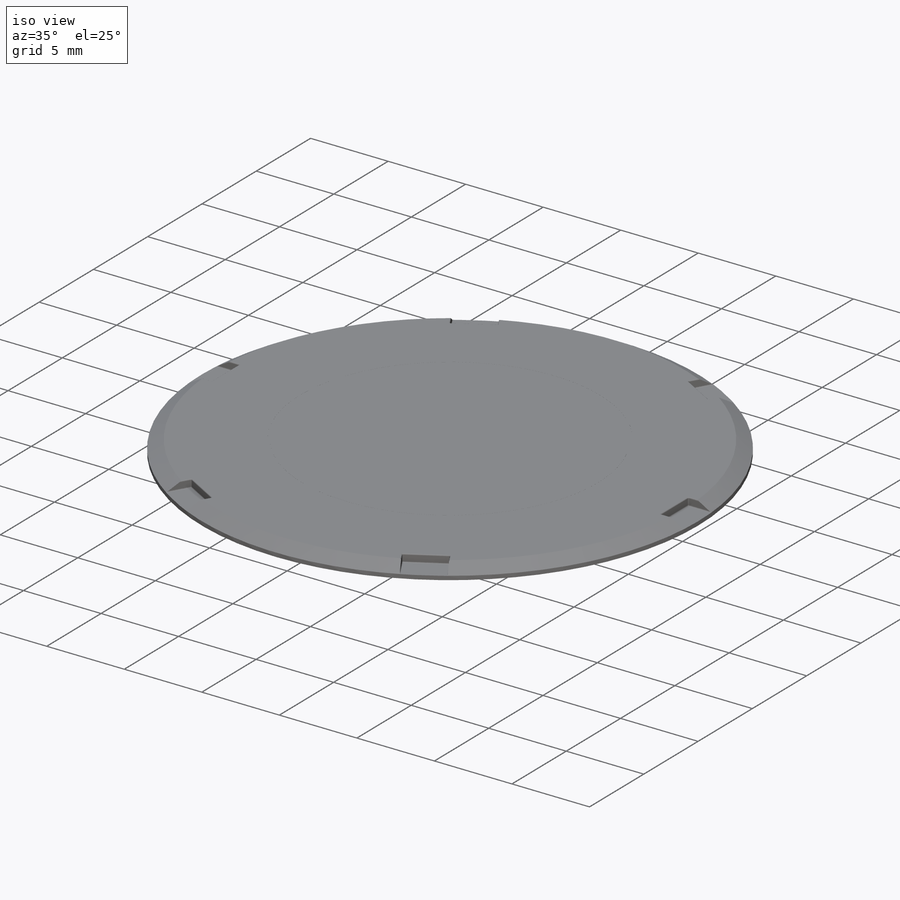
[diagram: iso view]
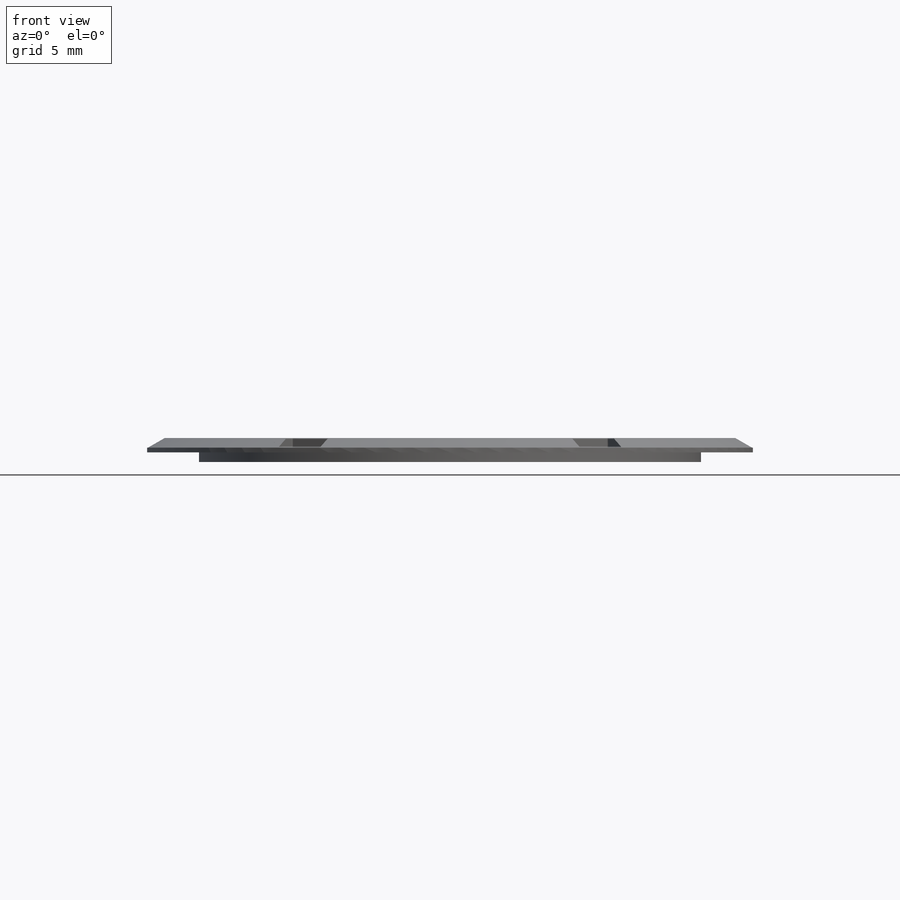
[diagram: front view]
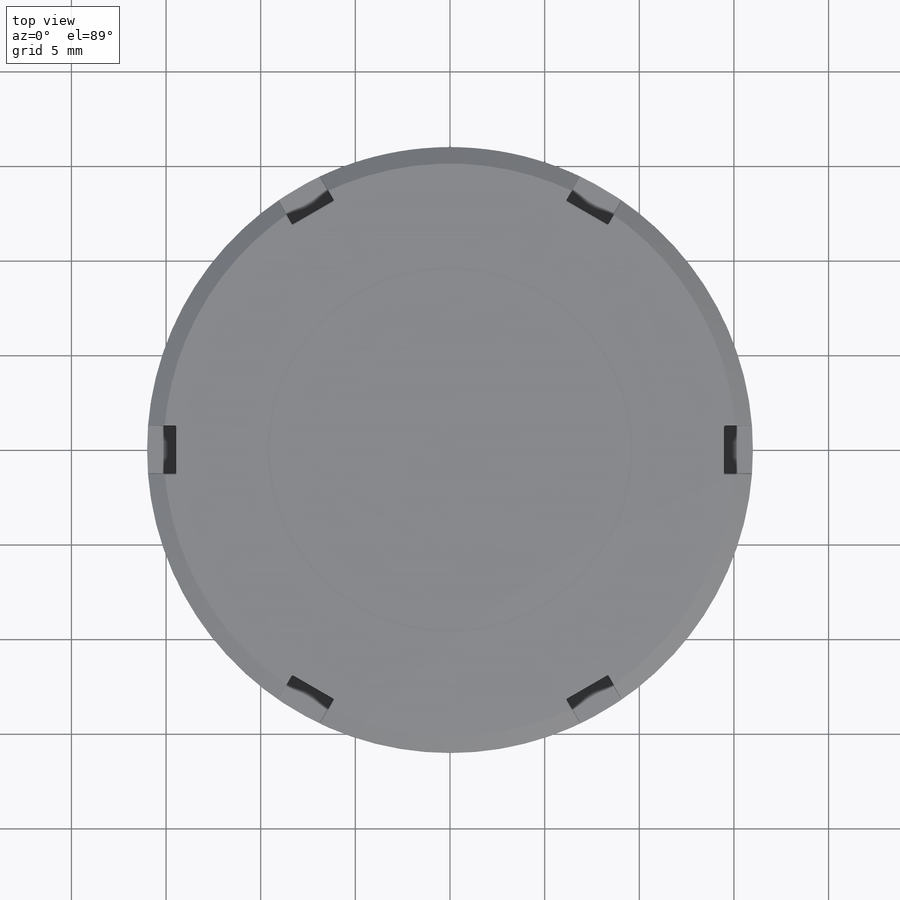
[diagram: top view]
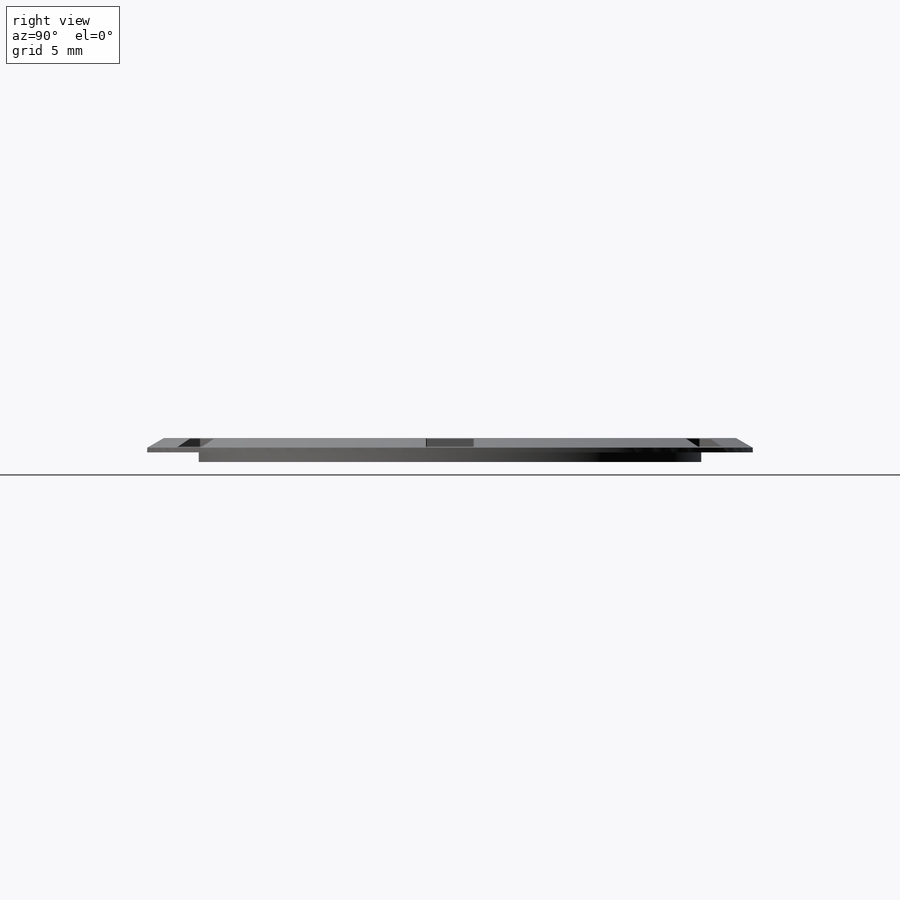
[diagram: right view]
SOLIDWORKS PART (.sldprt)
format: sldprt  version: not decoded by parser v0  size: 339,968 bytes
history: native  units: mm
features: sketch x5, extrude x2, cut_extrude x2, material x1, chamfer x1, fillet x1, pattern_circular x1 (+11 scaffold rows collapsed)
feature tree (24):
  scaffold x11  (default folders/planes/origin — collapsed)
  material  "Material <not specified>"
  sketch  "Sketch1"  dims[D1=32.004mm]
  extrude  "Extrude1"  Depth=0.762mm
  chamfer  "Chamfer1"  Distance=0.508mm Angle=60deg
  sketch  "Sketch2"  dims[D1=26.543mm]
  extrude  "Extrude2"  Depth=0.508mm
  sketch  "Sketch3"  dims[D1=19.05mm D2=19.304mm]
  cut_extrude  "Extrude3"  Depth=0.00254mm
  sketch  "Sketch4"  dims[D1=2.54mm D2=1.524mm]
  cut_extrude  "Extrude4"  Depth=0.508mm
  fillet  "Fillet1"  Radius=0.0635mm
  sketch  "Sketch5"
  pattern_circular  "CirPattern1"  Count=6 Angle=360deg
decode coverage: 11 of 12 modeling features carry decoded parameters
note: suppression state not decoded; provenance and decode notes live in map.json
